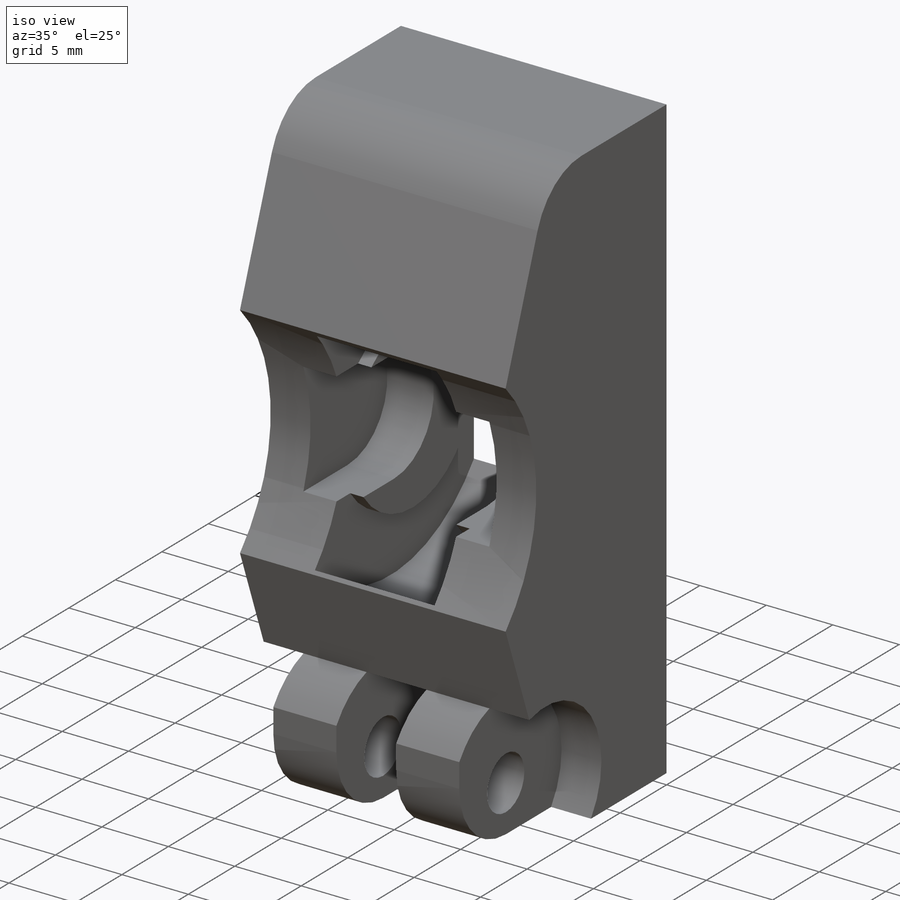
[diagram: iso view]
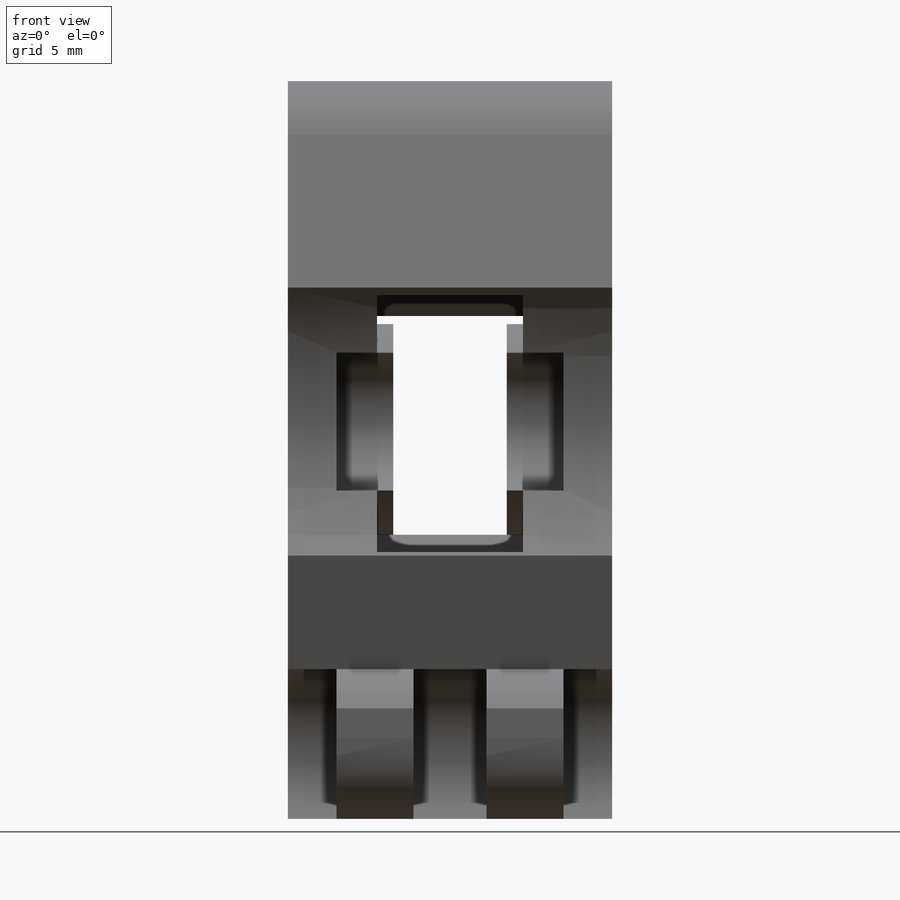
[diagram: front view]
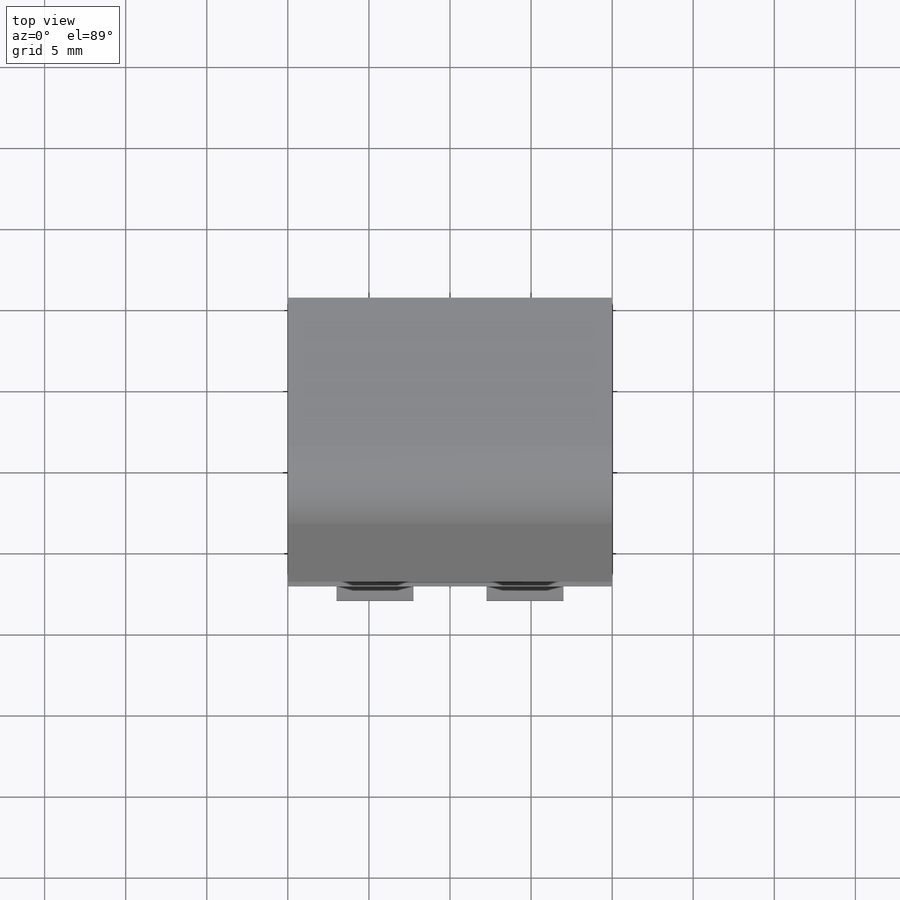
[diagram: top view]
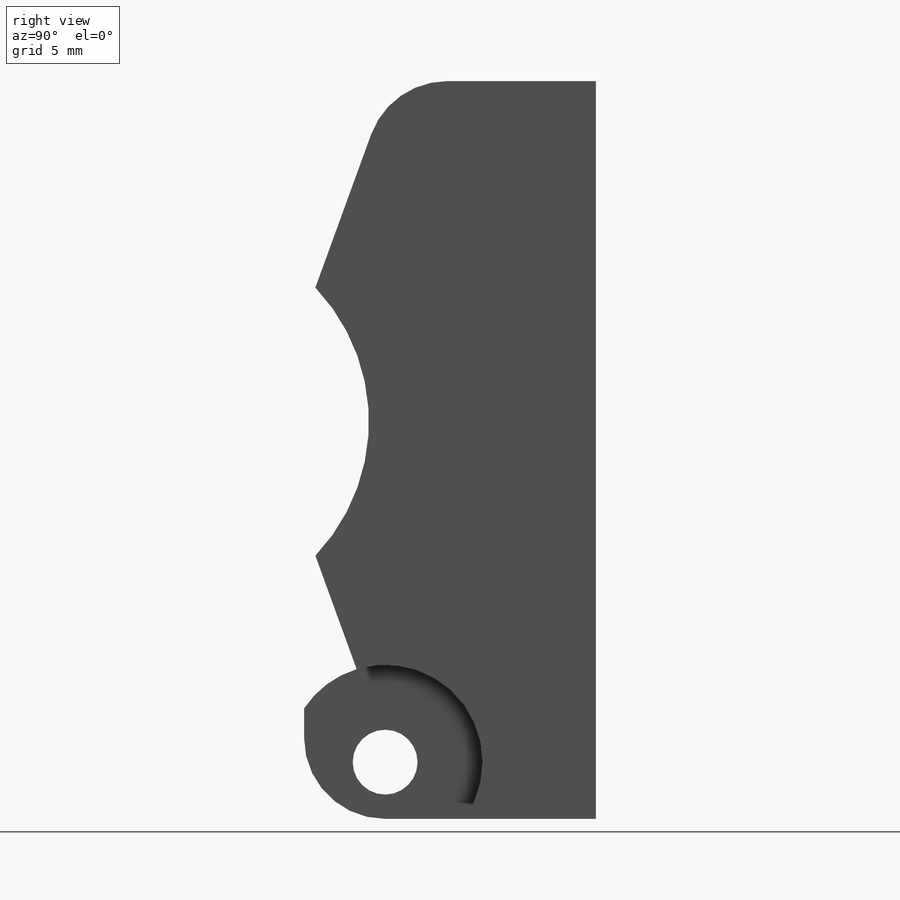
[diagram: right view]
SOLIDWORKS PART (.sldprt)
format: sldprt  version: not decoded by parser v0  size: 337,920 bytes
history: native  units: mm
features: sketch x8, cut_extrude x7, plane x4, extrude x2, material x1, fillet x1, mirror x1 (+10 scaffold rows collapsed)
feature tree (34):
  scaffold x10  (default folders/planes/origin — collapsed)
  material  "Matériau <non spécifié>"
  plane  "Plan de face"
  plane  "Plan de dessus"
  plane  "Plan de droite"
  sketch  "Esquisse1"  dims[c1.D1=42.0mm c1.D2=20.0mm c2.D1=45.5mm c2.D2=~6.099254mm c3.D2=70.0deg c3.D3=42.0mm c4.D3=~305.380424deg c5.D3=~12.041457mm c6.D3=70.0deg c6.D4=16.2mm c6.D5=~9.527503mm c6.D6=~14.222719mm c7.D5=18.0mm c7.D2=14.65mm]
  extrude  "Boss.-Extru.1"  Depth=20mm
  sketch  "Esquisse2"  dims[c1.D4=26.5mm c1.D5=4.0mm c1.D2=24.0mm c2.D4=8.0mm c2.D1=3.5mm c2.D2=7.15mm c2.D3=22.0mm c3.D2=~27.804784mm c3.D3=5.0mm c3.D4=25.0mm c3.D6=10.0mm c3.D1=3.5mm c3.D7=21.0mm c3.D8=26.0mm c4.D4=21.0mm]
  cut_extrude  "Enlèv. mat.-Extru.1"  [1 undecoded]
  sketch  "Esquisse14"  dims[D1=8.5mm D2=10.0mm]
  cut_extrude  "Enlèv. mat.-Extru.7"  Depth=14mm
  fillet  "Congé1"  Radius=5mm
  plane  "Plan1"  Offset=10mm
  sketch  "Esquisse5"  dims[D1=22.5mm D2=5.0mm]
  cut_extrude  "Enlèv. mat.-Extru.2"  Depth=9mm
  sketch  "Esquisse8"  dims[D1=13.0mm D2=6.0mm]
  extrude  "Boss.-Extru.2"  Depth=1mm
  mirror  "Symétrie1"
  sketch  "Esquisse11"  dims[D1=12.0mm]
  cut_extrude  "Enlèv. mat.-Extru.3"  Depth=4.5mm
  cut_extrude  "Enlèv. mat.-Extru.4"  Depth=3mm
  cut_extrude  "Enlèv. mat.-Extru.5"  [1 undecoded]
  sketch  "Esquisse11<3>"  dims[D1=3.0mm D19=7.0mm]
  sketch  "Esquisse13"  dims[c1.D1=~7.115087mm c2.D1=70.0deg c2.D2=~6.684243mm c3.D2=20.0deg c4.D2=0.75mm c4.D1=~7.440085mm c5.D1=70.0deg]
  cut_extrude  "Enlèv. mat.-Extru.6"  [1 undecoded]
decode coverage: 15 of 19 modeling features carry decoded parameters
note: ~ marks probable driven/reference dimensions
note: 3 parameter values undecoded
summary: no parameter record found for 3 features
note: suppression state not decoded; provenance and decode notes live in map.json
